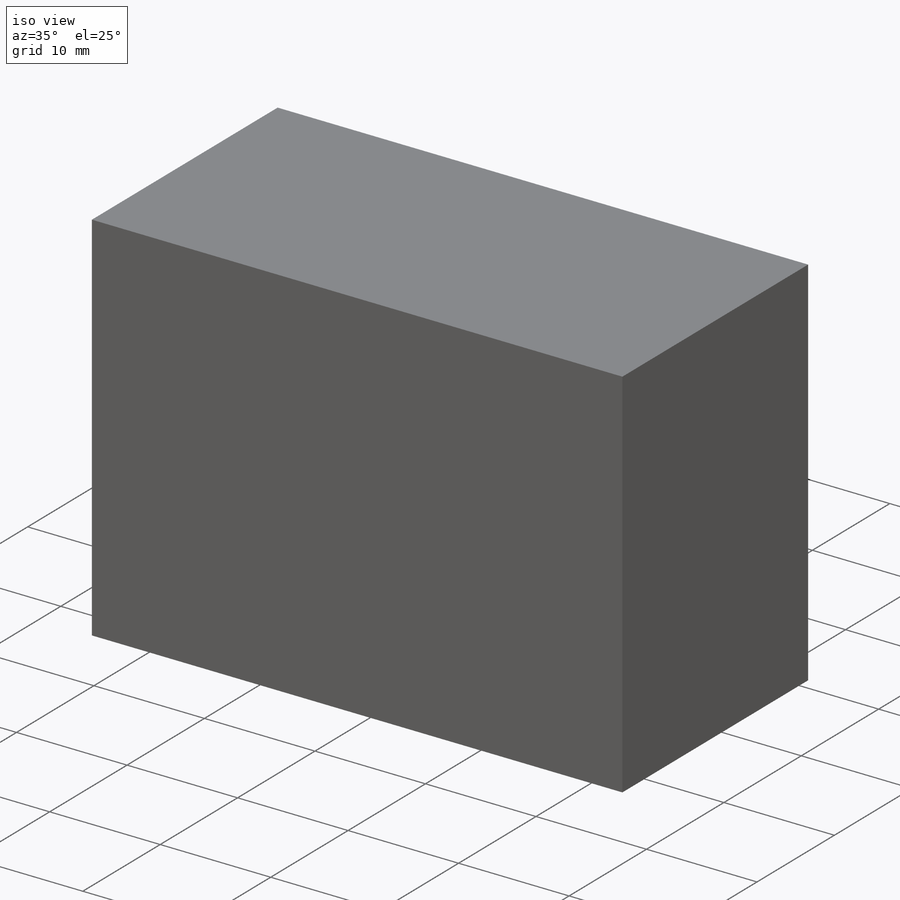
[diagram: iso view]
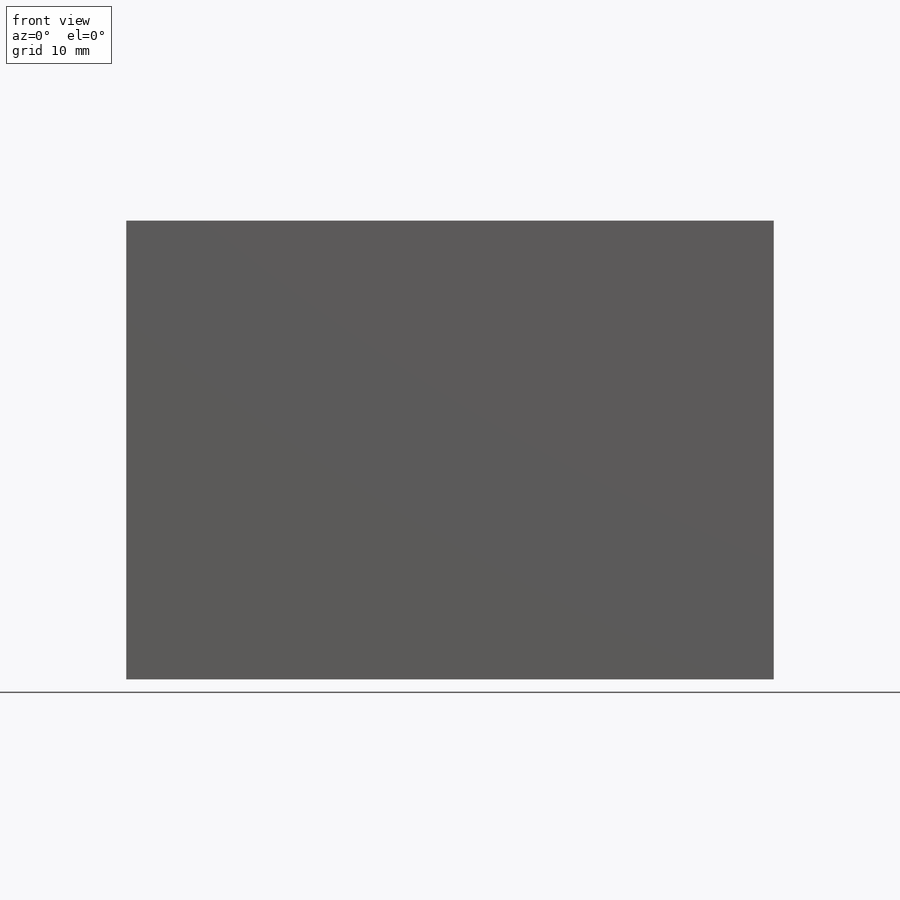
[diagram: front view]
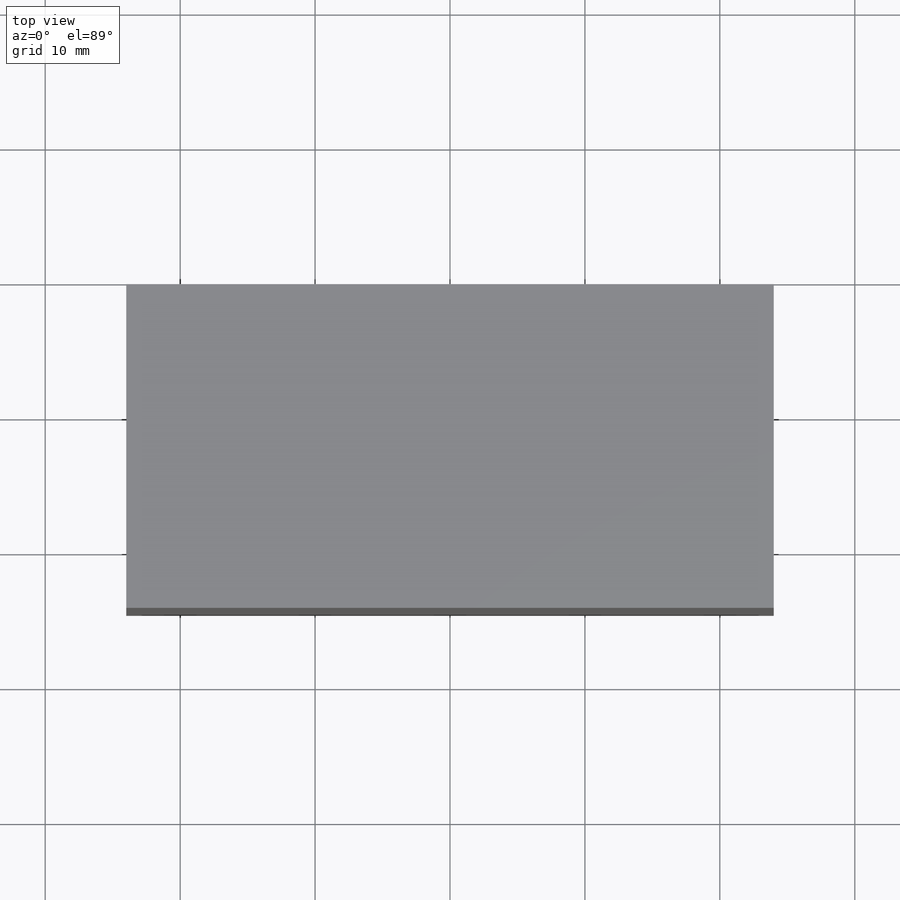
[diagram: top view]
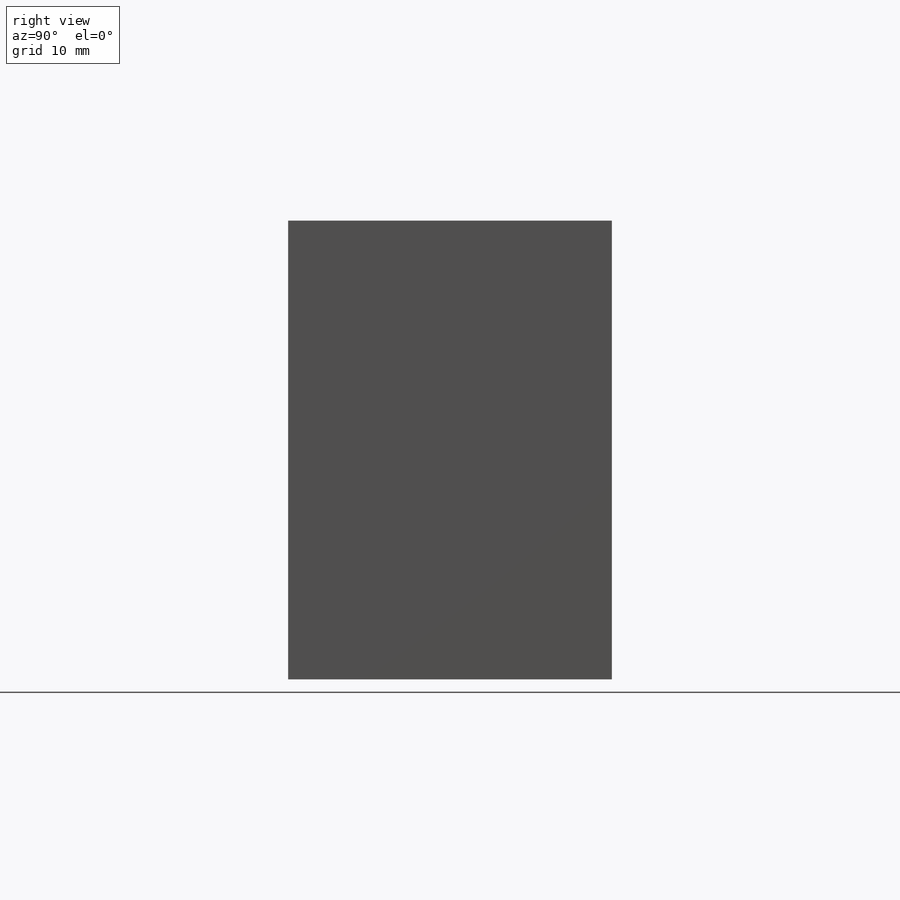
[diagram: right view]
SOLIDWORKS PART (.sldprt)
format: sldprt  version: not decoded by parser v0  size: 178,688 bytes
history: native  units: mm
features: sketch x4, extrude x2, cut_extrude x2, material x1, shell x1 (+13 scaffold rows collapsed)
feature tree (23):
  scaffold x13  (default folders/planes/origin — collapsed)
  material  "Material <not specified>"
  sketch  "Sketch1"  dims[D1=24.0mm D2=48.0mm D3=24.0mm]
  extrude  "Boss-Extrude1"  Depth=34mm
  shell  "Shell1"  Thickness=2mm
  sketch  "Sketch2"  dims[c1.D2=~0.862952mm c1.D1=6.0mm c2.D2=6.0mm c2.D1=24.0mm]
  cut_extrude  "Cut-Extrude1"  Depth=2mm
  sketch  "Sketch3"  dims[D1=6.5mm D2=6.5mm]
  extrude  "Boss-Extrude2"  [1 undecoded]
  sketch  "Sketch4"  dims[D1=4.0mm D2=4.0mm D3=9.0mm D4=9.0mm]
  cut_extrude  "Cut-Extrude2"  Depth=10mm
decode coverage: 8 of 9 modeling features carry decoded parameters
note: ~ marks probable driven/reference dimensions
note: 1 parameter value undecoded
note: suppression state not decoded; provenance and decode notes live in map.json
